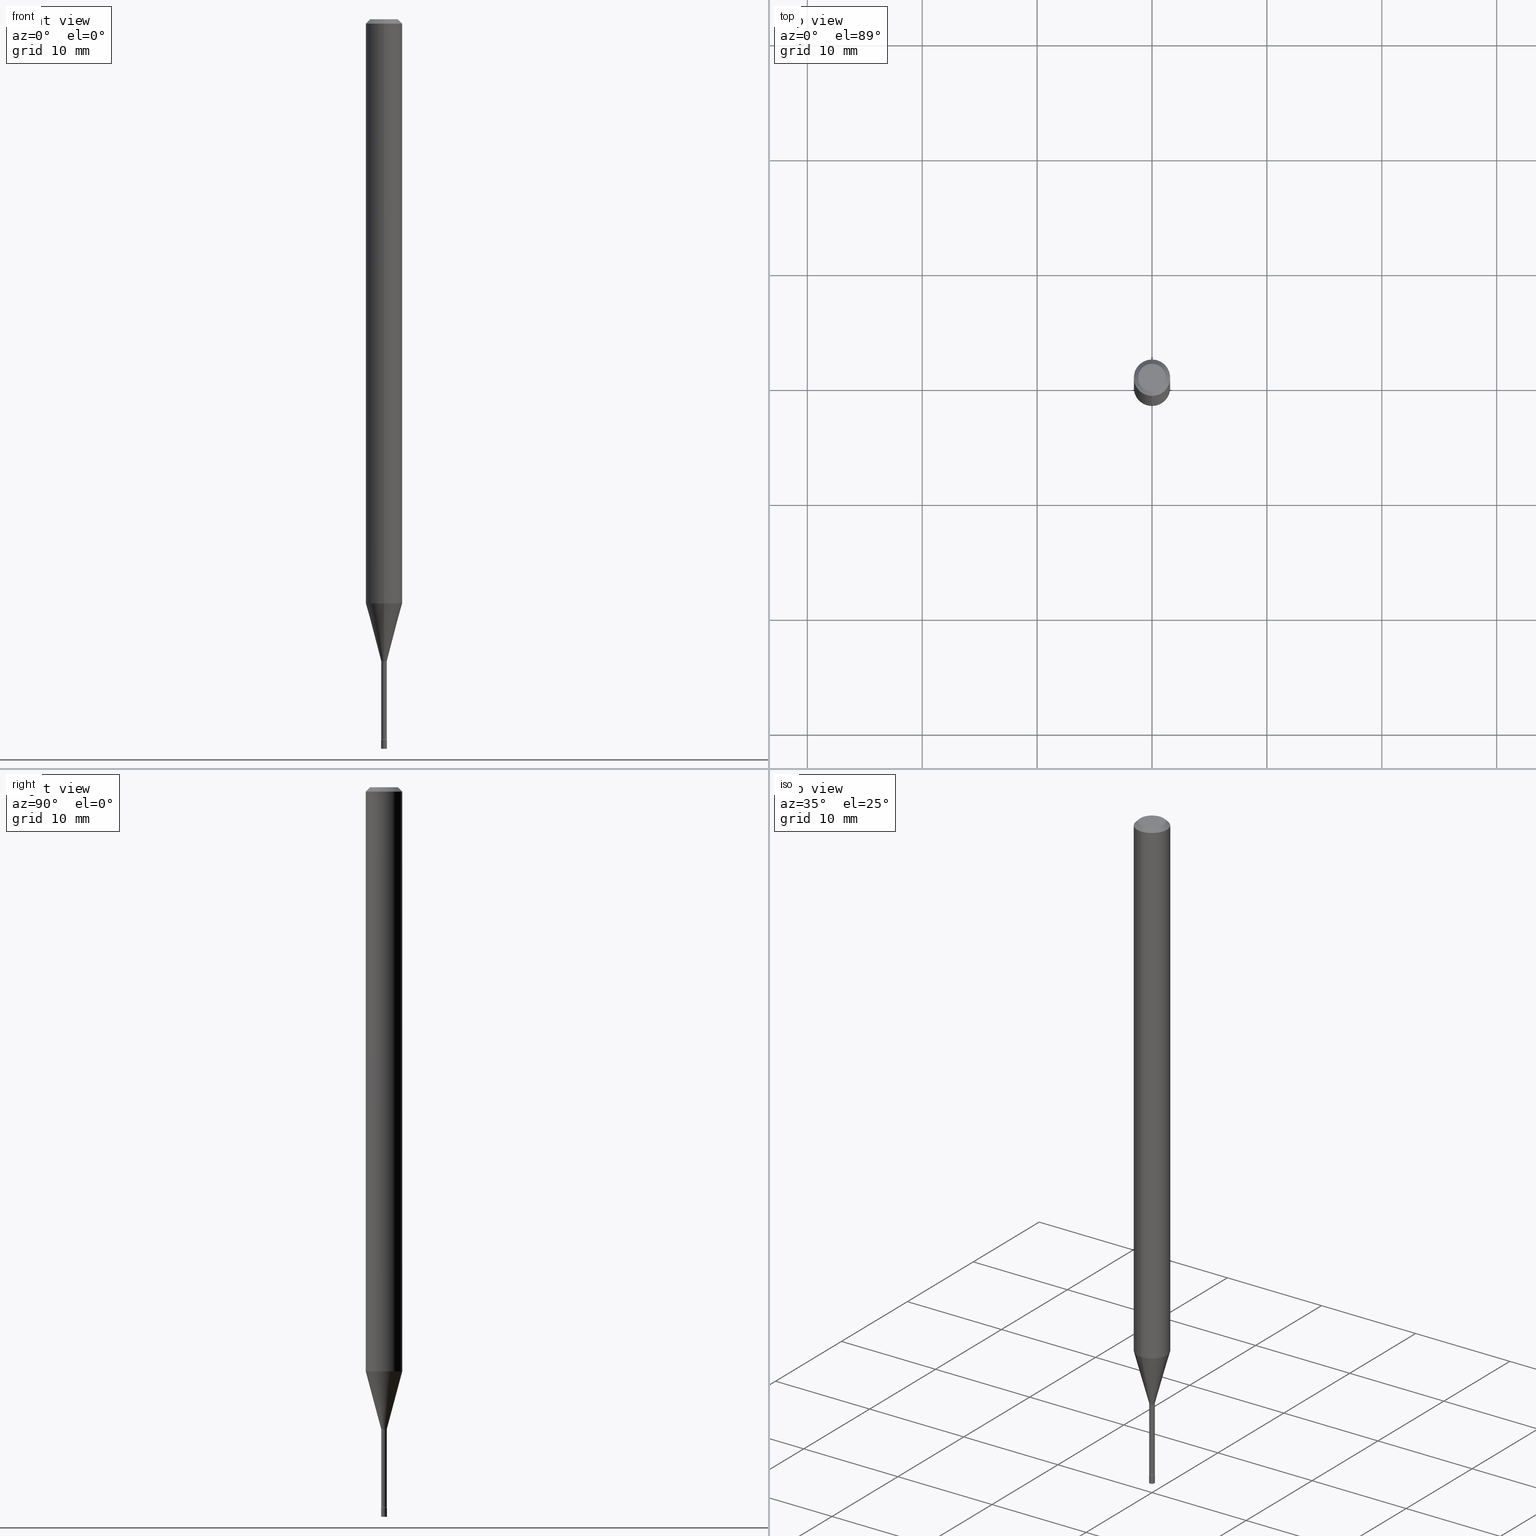
[diagram: canonical four-view strip — front | top / right | iso, engineering-drawing reading convention]
A machine part, canonical four-view strip (front | top / right | iso — engineering-drawing reading convention). The complete STEP part file that produces these views, byte-faithful:
ISO-10303-21;
HEADER;
FILE_DESCRIPTION (( 'STEP AP203' ),
    '1' );
FILE_NAME ('09610.STEP',
    '2024-03-08T23:56:40',
    ( '' ),
    ( '' ),
    'SwSTEP 2.0',
    'SolidWorks 2023',
    '' );
FILE_SCHEMA (( 'CONFIG_CONTROL_DESIGN' ));
ENDSEC;

DATA;
#1 = EDGE_CURVE ( 'NONE', #510, #108, #511, .T. ) ;
#2 = CARTESIAN_POINT ( 'NONE',  ( -6.563984917025098705E-17, -0.009400000000000012512, 3.281901276087720276E-17 ) ) ;
#3 = APPROVAL_STATUS ( 'not_yet_approved' ) ;
#4 = PERSON_AND_ORGANIZATION_ROLE ( 'creator' ) ;
#5 = CARTESIAN_POINT ( 'NONE',  ( 0.01000000000000000021, -8.693788533719433294E-15, -2.470000000000000195 ) ) ;
#6 = CIRCLE ( 'NONE', #159, 0.06250000000000000000 ) ;
#7 = AXIS2_PLACEMENT_3D ( 'NONE', #143, #428, #113 ) ;
#8 = APPROVAL_PERSON_ORGANIZATION ( #85, #103, #49 ) ;
#9 = DIRECTION ( 'NONE',  ( -2.445536542724447659E-29, 3.491384336263527933E-15, 1.000000000000000000 ) ) ;
#10 = FACE_OUTER_BOUND ( 'NONE', #498, .T. ) ;
#11 = APPROVAL ( #494, 'UNSPECIFIED' ) ;
#12 = FACE_OUTER_BOUND ( 'NONE', #188, .T. ) ;
#13 = DIRECTION ( 'NONE',  ( -2.445536542724447659E-29, 3.491384336263527933E-15, 1.000000000000000000 ) ) ;
#14 = DATE_AND_TIME ( #450, #477 ) ;
#15 = DIRECTION ( 'NONE',  ( -2.445536542724447659E-29, 3.491384336263527933E-15, 1.000000000000000000 ) ) ;
#16 = CIRCLE ( 'NONE', #74, 0.01000000000000000021 ) ;
#17 = DIRECTION ( 'NONE',  ( -6.982962677686265922E-15, -1.000000000000000000, 0.000000000000000000 ) ) ;
#18 = CARTESIAN_POINT ( 'NONE',  ( -1.703842893354910715E-16, -0.02440000000000768984, -2.201974787463810923 ) ) ;
#19 = FACE_OUTER_BOUND ( 'NONE', #427, .T. ) ;
#20 = CARTESIAN_POINT ( 'NONE',  ( -6.982962677680226008E-17, -0.01000000000000862178, -2.470000000000000195 ) ) ;
#21 = APPLICATION_CONTEXT ( 'configuration controlled 3d designs of mechanical parts and assemblies' ) ;
#22 = VERTEX_POINT ( 'NONE', #423 ) ;
#23 = CIRCLE ( 'NONE', #424, 0.01000000000000000021 ) ;
#24 = PERSON_AND_ORGANIZATION ( #46, #370 ) ;
#25 = CARTESIAN_POINT ( 'NONE',  ( 5.385009808900648701E-29, -7.687940281798359888E-15, -2.201974787463810923 ) ) ;
#26 = EDGE_CURVE ( 'NONE', #308, #506, #307, .T. ) ;
#27 = EDGE_LOOP ( 'NONE', ( #381, #350, #313, #464 ) ) ;
#28 = ORIENTED_EDGE ( 'NONE', *, *, #358, .F. ) ;
#29 = TOROIDAL_SURFACE ( 'NONE', #165, 0.02440000000000002583, 0.01500000000000000291 ) ;
#30 = AXIS2_PLACEMENT_3D ( 'NONE', #388, #426, #507 ) ;
#31 = AXIS2_PLACEMENT_3D ( 'NONE', #382, #516, #179 ) ;
#32 = EDGE_LOOP ( 'NONE', ( #384, #347 ) ) ;
#33 = CARTESIAN_POINT ( 'NONE',  ( -0.01000000000000000021, -8.605276853449206598E-15, -2.500000000000000000 ) ) ;
#34 = ORIENTED_EDGE ( 'NONE', *, *, #275, .T. ) ;
#35 = ORIENTED_EDGE ( 'NONE', *, *, #26, .T. ) ;
#36 = EDGE_CURVE ( 'NONE', #429, #134, #260, .T. ) ;
#37 = LINE ( 'NONE', #479, #60 ) ;
#38 = CIRCLE ( 'NONE', #259, 0.01500000000000002373 ) ;
#39 = CARTESIAN_POINT ( 'NONE',  ( 0.000000000000000000, 0.000000000000000000, 0.000000000000000000 ) ) ;
#40 = AXIS2_PLACEMENT_3D ( 'NONE', #391, #471, #146 ) ;
#41 = CARTESIAN_POINT ( 'NONE',  ( 4.440892098501114269E-16, 0.06249999999999299866, -2.001828102118093256 ) ) ;
#42 = DIRECTION ( 'NONE',  ( -2.445536542724447659E-29, 3.491384336263527933E-15, 1.000000000000000000 ) ) ;
#43 = CARTESIAN_POINT ( 'NONE',  ( 3.668304814086678845E-31, -5.237076504395302352E-17, -0.01500000000000003067 ) ) ;
#44 = ORIENTED_EDGE ( 'NONE', *, *, #319, .T. ) ;
#45 = DIRECTION ( 'NONE',  ( -2.445536542724447659E-29, 3.491384336263527933E-15, 1.000000000000000000 ) ) ;
#46 = PERSON ( 'UNSPECIFIED', 'UNSPECIFIED', 'UNSPECIFIED', ('UNSPECIFIED'), ('UNSPECIFIED'), ('UNSPECIFIED') ) ;
#47 = CARTESIAN_POINT ( 'NONE',  ( -4.287811248607203282E-16, -0.06250000000000005551, -0.01499999999999981209 ) ) ;
#48 = DATE_AND_TIME ( #444, #338 ) ;
#49 = APPROVAL_ROLE ( '' ) ;
#50 = CARTESIAN_POINT ( 'NONE',  ( 6.030036982291310238E-29, -8.609294685319429365E-15, -2.465800000000000214 ) ) ;
#51 = AXIS2_PLACEMENT_3D ( 'NONE', #371, #249, #93 ) ;
#52 = ADVANCED_FACE ( 'NONE', ( #264 ), #130, .T. ) ;
#53 = DATE_TIME_ROLE ( 'creation_date' ) ;
#54 = APPROVAL_DATE_TIME ( #48, #11 ) ;
#55 = EDGE_LOOP ( 'NONE', ( #225, #305, #231, #399 ) ) ;
#56 = CC_DESIGN_PERSON_AND_ORGANIZATION_ASSIGNMENT ( #325, #4, ( #195 ) ) ;
#57 = ORIENTED_EDGE ( 'NONE', *, *, #117, .F. ) ;
#58 = DIRECTION ( 'NONE',  ( -1.807323732225328562E-15, -0.2588190451025179639, 0.9659258262890690894 ) ) ;
#59 = DIRECTION ( 'NONE',  ( -6.982962677686265922E-15, -1.000000000000000000, 3.491384336263527933E-15 ) ) ;
#60 = VECTOR ( 'NONE', #317, 39.37007874015748143 ) ;
#61 = PERSON_AND_ORGANIZATION_ROLE ( 'classification_officer' ) ;
#62 = DIRECTION ( 'NONE',  ( 2.438088387897960049E-29, -3.491481338843145188E-15, -1.000000000000000000 ) ) ;
#63 = MANIFOLD_SOLID_BREP ( 'Body-Move/Copy2[2]', #309 ) ;
#64 = DIRECTION ( 'NONE',  ( 1.000000000000000000, -7.105427357601001070E-15, 4.926314320603096360E-29 ) ) ;
#65 = CARTESIAN_POINT ( 'NONE',  ( 6.040475260529386236E-29, -8.623719310570914180E-15, -2.470000000000000195 ) ) ;
#66 = CARTESIAN_POINT ( 'NONE',  ( 4.440892098500625669E-16, 0.06250000000000000000, -2.182115210164704958E-16 ) ) ;
#67 = VECTOR ( 'NONE', #323, 39.37007874015748143 ) ;
#68 = VERTEX_POINT ( 'NONE', #106 ) ;
#69 = DIRECTION ( 'NONE',  ( 7.105427357600999492E-15, 1.000000000000000000, 0.000000000000000000 ) ) ;
#70 = EDGE_LOOP ( 'NONE', ( #390, #181, #57, #476 ) ) ;
#71 = CC_DESIGN_PERSON_AND_ORGANIZATION_ASSIGNMENT ( #449, #89, ( #212 ) ) ;
#72 = EDGE_LOOP ( 'NONE', ( #34, #459 ) ) ;
#73 = CIRCLE ( 'NONE', #368, 0.009911112605663977004 ) ;
#74 = AXIS2_PLACEMENT_3D ( 'NONE', #279, #435, #81 ) ;
#75 = DIRECTION ( 'NONE',  ( -6.982962677686265922E-15, -1.000000000000000000, 3.491384336263527933E-15 ) ) ;
#76 = ORIENTED_EDGE ( 'NONE', *, *, #233, .F. ) ;
#77 = DIRECTION ( 'NONE',  ( 1.000000000000000000, -7.105427357601001070E-15, 4.926314320603096360E-29 ) ) ;
#78 = CARTESIAN_POINT ( 'NONE',  ( -0.01000000000000000021, -8.605276853449206598E-15, -2.470000000000000195 ) ) ;
#79 = EDGE_CURVE ( 'NONE', #185, #271, #38, .T. ) ;
#80 = DIRECTION ( 'NONE',  ( -6.982962677686266711E-15, -1.000000000000000000, 3.491384336263528328E-15 ) ) ;
#81 = DIRECTION ( 'NONE',  ( 1.000000000000000000, -6.982962677686235945E-15, 0.000000000000000000 ) ) ;
#82 = TOROIDAL_SURFACE ( 'NONE', #160, 0.02440000000000000155, 0.01500000000000002720 ) ;
#83 = APPROVAL_PERSON_ORGANIZATION ( #333, #11, #489 ) ;
#84 = CARTESIAN_POINT ( 'NONE',  ( 2.572559502513572182E-16, 0.009911112605656302588, -2.198092501787273001 ) ) ;
#85 = PERSON_AND_ORGANIZATION ( #46, #370 ) ;
#86 = DIRECTION ( 'NONE',  ( -2.445468806185136877E-29, 3.491481338843145188E-15, 1.000000000000000000 ) ) ;
#87 = FACE_OUTER_BOUND ( 'NONE', #211, .T. ) ;
#88 = COORDINATED_UNIVERSAL_TIME_OFFSET ( 5, 0, .BEHIND. ) ;
#89 = PERSON_AND_ORGANIZATION_ROLE ( 'design_owner' ) ;
#90 = EDGE_CURVE ( 'NONE', #108, #346, #392, .T. ) ;
#91 = DIRECTION ( 'NONE',  ( 1.000000000000000000, -6.982962677686265922E-15, 4.876176775795935793E-29 ) ) ;
#92 = LINE ( 'NONE', #47, #300 ) ;
#93 = DIRECTION ( 'NONE',  ( -6.982962677686265922E-15, -1.000000000000000000, 3.491384336263527933E-15 ) ) ;
#94 = CONICAL_SURFACE ( 'NONE', #310, 0.009911112605663977004, 0.2617993877991500740 ) ;
#95 = SHAPE_DEFINITION_REPRESENTATION ( #299, #440 ) ;
#96 = DIRECTION ( 'NONE',  ( -6.982962677686265922E-15, -1.000000000000000000, 3.491384336263527933E-15 ) ) ;
#97 = DIRECTION ( 'NONE',  ( 4.937700262164548042E-15, 0.7071067811865451302, -0.7071067811865499042 ) ) ;
#98 = CALENDAR_DATE ( 2024, 8, 3 ) ;
#99 = CIRCLE ( 'NONE', #240, 0.009399999999999998634 ) ;
#100 = FACE_OUTER_BOUND ( 'NONE', #32, .T. ) ;
#101 = CIRCLE ( 'NONE', #446, 0.009400000000000024655 ) ;
#102 = CARTESIAN_POINT ( 'NONE',  ( 0.01000000000000000021, -8.798532973884726663E-15, -2.500000000000000000 ) ) ;
#103 = APPROVAL ( #3, 'UNSPECIFIED' ) ;
#104 = ORIENTED_EDGE ( 'NONE', *, *, #474, .F. ) ;
#105 = DATE_AND_TIME ( #466, #114 ) ;
#106 = CARTESIAN_POINT ( 'NONE',  ( -4.364351673553912750E-16, -0.06250000000000005551, -0.01499999999999981209 ) ) ;
#107 = AXIS2_PLACEMENT_3D ( 'NONE', #25, #170, #508 ) ;
#108 = VERTEX_POINT ( 'NONE', #20 ) ;
#109 = ORIENTED_EDGE ( 'NONE', *, *, #221, .F. ) ;
#110 = COORDINATED_UNIVERSAL_TIME_OFFSET ( 5, 0, .BEHIND. ) ;
#111 = ORIENTED_EDGE ( 'NONE', *, *, #117, .T. ) ;
#112 = VECTOR ( 'NONE', #58, 39.37007874015748854 ) ;
#113 = DIRECTION ( 'NONE',  ( 1.000000000000000000, -6.982962677686265922E-15, 4.876176775795935793E-29 ) ) ;
#114 = LOCAL_TIME ( 18, 56, 40.00000000000000000, #263 ) ;
#115 = EDGE_LOOP ( 'NONE', ( #431, #145 ) ) ;
#116 = ORIENTED_EDGE ( 'NONE', *, *, #383, .T. ) ;
#117 = EDGE_CURVE ( 'NONE', #271, #315, #351, .T. ) ;
#118 = DIRECTION ( 'NONE',  ( -2.445468806185136597E-29, 3.491481338843145583E-15, 1.000000000000000000 ) ) ;
#119 = ADVANCED_FACE ( 'NONE', ( #456 ), #29, .F. ) ;
#120 = CARTESIAN_POINT ( 'NONE',  ( 6.040307951277287977E-29, -8.623958906942569995E-15, -2.470000000000000195 ) ) ;
#121 = LINE ( 'NONE', #451, #141 ) ;
#122 = CYLINDRICAL_SURFACE ( 'NONE', #142, 0.01000000000000000021 ) ;
#123 = ORIENTED_EDGE ( 'NONE', *, *, #79, .T. ) ;
#124 = CARTESIAN_POINT ( 'NONE',  ( 4.895543775982524061E-29, -6.989151279627256270E-15, -2.001828102118093256 ) ) ;
#125 = CIRCLE ( 'NONE', #404, 0.06250000000000000000 ) ;
#126 = PERSON_AND_ORGANIZATION_ROLE ( 'creator' ) ;
#127 = DIRECTION ( 'NONE',  ( -2.445536542724447659E-29, 3.491384336263527933E-15, 1.000000000000000000 ) ) ;
#128 = DIRECTION ( 'NONE',  ( -2.445536542724447659E-29, 3.491384336263527933E-15, 1.000000000000000000 ) ) ;
#129 = APPROVAL_STATUS ( 'not_yet_approved' ) ;
#130 = CYLINDRICAL_SURFACE ( 'NONE', #488, 0.06250000000000000000 ) ;
#131 = FACE_OUTER_BOUND ( 'NONE', #513, .T. ) ;
#132 = CARTESIAN_POINT ( 'NONE',  ( 0.000000000000000000, 0.000000000000000000, 0.000000000000000000 ) ) ;
#133 = ADVANCED_FACE ( 'NONE', ( #100 ), #467, .T. ) ;
#134 = VERTEX_POINT ( 'NONE', #102 ) ;
#135 = AXIS2_PLACEMENT_3D ( 'NONE', #219, #342, #501 ) ;
#136 = EDGE_CURVE ( 'NONE', #134, #517, #182, .T. ) ;
#137 = ORIENTED_EDGE ( 'NONE', *, *, #486, .F. ) ;
#138 = FACE_OUTER_BOUND ( 'NONE', #436, .T. ) ;
#139 = ORIENTED_EDGE ( 'NONE', *, *, #164, .T. ) ;
#140 = PLANE ( 'NONE',  #178 ) ;
#141 = VECTOR ( 'NONE', #406, 39.37007874015748143 ) ;
#142 = AXIS2_PLACEMENT_3D ( 'NONE', #252, #118, #239 ) ;
#143 = CARTESIAN_POINT ( 'NONE',  ( 0.000000000000000000, 0.000000000000000000, 0.000000000000000000 ) ) ;
#144 = ORIENTED_EDGE ( 'NONE', *, *, #136, .F. ) ;
#145 = ORIENTED_EDGE ( 'NONE', *, *, #499, .F. ) ;
#146 = DIRECTION ( 'NONE',  ( 1.000000000000000000, -6.982962677686235945E-15, 0.000000000000000000 ) ) ;
#147 = ORIENTED_EDGE ( 'NONE', *, *, #216, .T. ) ;
#148 = EDGE_CURVE ( 'NONE', #315, #271, #99, .T. ) ;
#149 = AXIS2_PLACEMENT_3D ( 'NONE', #50, #13, #206 ) ;
#150 =( LENGTH_UNIT ( ) NAMED_UNIT ( * ) SI_UNIT ( $, .METRE. ) );
#151 = ORIENTED_EDGE ( 'NONE', *, *, #515, .F. ) ;
#152 = DIRECTION ( 'NONE',  ( -2.445536542724447659E-29, 3.491384336263527933E-15, 1.000000000000000000 ) ) ;
#153 = CARTESIAN_POINT ( 'NONE',  ( 7.072129387646011672E-46, -1.009656626948158031E-31, -2.891851855040085948E-17 ) ) ;
#154 =( CONVERSION_BASED_UNIT ( 'INCH', #332 ) LENGTH_UNIT ( ) NAMED_UNIT ( #481 ) );
#155 = ADVANCED_FACE ( 'NONE', ( #10 ), #372, .T. ) ;
#156 = LINE ( 'NONE', #330, #326 ) ;
#157 = ORIENTED_EDGE ( 'NONE', *, *, #373, .T. ) ;
#158 =( NAMED_UNIT ( * ) PLANE_ANGLE_UNIT ( ) SI_UNIT ( $, .RADIAN. ) );
#159 = AXIS2_PLACEMENT_3D ( 'NONE', #124, #152, #321 ) ;
#160 = AXIS2_PLACEMENT_3D ( 'NONE', #234, #9, #75 ) ;
#161 = CARTESIAN_POINT ( 'NONE',  ( 4.440892098501118214E-16, 0.06249999999999995143, -0.01500000000000024751 ) ) ;
#162 = DIRECTION ( 'NONE',  ( -2.445536542724447659E-29, 3.491384336263527933E-15, 1.000000000000000000 ) ) ;
#163 = DIRECTION ( 'NONE',  ( -6.982962677686265922E-15, -1.000000000000000000, 0.000000000000000000 ) ) ;
#164 = EDGE_CURVE ( 'NONE', #429, #500, #121, .T. ) ;
#165 = AXIS2_PLACEMENT_3D ( 'NONE', #419, #258, #59 ) ;
#166 = APPROVAL_ROLE ( '' ) ;
#167 = CARTESIAN_POINT ( 'NONE',  ( -1.703842893354847853E-16, -0.02440000000000863700, -2.465800000000000214 ) ) ;
#168 = DIRECTION ( 'NONE',  ( -6.982962677686265922E-15, -1.000000000000000000, 3.483106191921935554E-15 ) ) ;
#169 = DATE_AND_TIME ( #98, #293 ) ;
#170 = DIRECTION ( 'NONE',  ( -2.445536542724447659E-29, 3.491384336263527933E-15, 1.000000000000000000 ) ) ;
#171 = EDGE_CURVE ( 'NONE', #308, #190, #6, .T. ) ;
#172 = DIRECTION ( 'NONE',  ( -6.982962677686265922E-15, -1.000000000000000000, 3.491384336263527539E-15 ) ) ;
#173 = DIRECTION ( 'NONE',  ( -2.445536542724447659E-29, 3.491384336263527933E-15, 1.000000000000000000 ) ) ;
#174 = EDGE_CURVE ( 'NONE', #22, #68, #92, .T. ) ;
#175 = FACE_OUTER_BOUND ( 'NONE', #70, .T. ) ;
#176 = VECTOR ( 'NONE', #173, 39.37007874015748143 ) ;
#177 = ORIENTED_EDGE ( 'NONE', *, *, #136, .T. ) ;
#178 = AXIS2_PLACEMENT_3D ( 'NONE', #469, #186, #91 ) ;
#179 = DIRECTION ( 'NONE',  ( -6.982962677686265922E-15, -1.000000000000000000, 0.000000000000000000 ) ) ;
#180 = EDGE_LOOP ( 'NONE', ( #244, #415 ) ) ;
#181 = ORIENTED_EDGE ( 'NONE', *, *, #515, .T. ) ;
#182 = LINE ( 'NONE', #243, #403 ) ;
#183 = EDGE_CURVE ( 'NONE', #185, #269, #73, .T. ) ;
#184 = DIRECTION ( 'NONE',  ( -6.982962677686265922E-15, -1.000000000000000000, 0.000000000000000000 ) ) ;
#185 = VERTEX_POINT ( 'NONE', #438 ) ;
#186 = DIRECTION ( 'NONE',  ( -2.438088387897960049E-29, 3.491481338843145188E-15, 1.000000000000000000 ) ) ;
#187 = CIRCLE ( 'NONE', #274, 0.06250000000000000000 ) ;
#188 = EDGE_LOOP ( 'NONE', ( #389, #139, #354, #144 ) ) ;
#189 = FACE_OUTER_BOUND ( 'NONE', #218, .T. ) ;
#190 = VERTEX_POINT ( 'NONE', #280 ) ;
#191 = ORIENTED_EDGE ( 'NONE', *, *, #257, .F. ) ;
#192 = AXIS2_PLACEMENT_3D ( 'NONE', #207, #162, #255 ) ;
#193 = DIRECTION ( 'NONE',  ( -2.445536542724447659E-29, 3.491384336263527933E-15, 1.000000000000000000 ) ) ;
#194 = CARTESIAN_POINT ( 'NONE',  ( 6.679101716150979261E-17, 0.009399999999992312075, -2.201974787463810923 ) ) ;
#195 = PRODUCT_DEFINITION ( 'UNKNOWN', '', #262, #430 ) ;
#196 = CARTESIAN_POINT ( 'NONE',  ( -6.563984917019076245E-17, -0.009400000000008634088, -2.465800000000000214 ) ) ;
#197 = DIRECTION ( 'NONE',  ( 2.445536542724447659E-29, -3.491384336263527933E-15, -1.000000000000000000 ) ) ;
#198 = VERTEX_POINT ( 'NONE', #256 ) ;
#199 = DIRECTION ( 'NONE',  ( -6.982962677686265922E-15, -1.000000000000000000, 0.000000000000000000 ) ) ;
#200 = DIRECTION ( 'NONE',  ( -2.445536542724447659E-29, 3.491384336263527933E-15, 1.000000000000000000 ) ) ;
#201 = LINE ( 'NONE', #360, #376 ) ;
#202 = AXIS2_PLACEMENT_3D ( 'NONE', #43, #197, #439 ) ;
#203 = CARTESIAN_POINT ( 'NONE',  ( 3.668304814086678845E-31, -5.237076504395302352E-17, -0.01500000000000003067 ) ) ;
#204 = CARTESIAN_POINT ( 'NONE',  ( 5.385009808900648701E-29, -7.687940281798359888E-15, -2.201974787463810923 ) ) ;
#205 = CC_DESIGN_APPROVAL ( #103, ( #195 ) ) ;
#206 = DIRECTION ( 'NONE',  ( -6.982962677686265922E-15, -1.000000000000000000, 3.491384336263527933E-15 ) ) ;
#207 = CARTESIAN_POINT ( 'NONE',  ( 5.375515537409379178E-29, -7.674385730398396481E-15, -2.198092501787273001 ) ) ;
#208 = CC_DESIGN_PERSON_AND_ORGANIZATION_ASSIGNMENT ( #336, #126, ( #262 ) ) ;
#209 = ORIENTED_EDGE ( 'NONE', *, *, #171, .T. ) ;
#210 = PERSON_AND_ORGANIZATION ( #46, #370 ) ;
#211 = EDGE_LOOP ( 'NONE', ( #226, #215, #147, #285 ) ) ;
#212 = PRODUCT ( '09610', '09610', '', ( #447 ) ) ;
#213 = CARTESIAN_POINT ( 'NONE',  ( 6.030204007049943435E-29, -8.609055496358607345E-15, -2.465800000000000214 ) ) ;
#214 = AXIS2_PLACEMENT_3D ( 'NONE', #417, #64, #291 ) ;
#215 = ORIENTED_EDGE ( 'NONE', *, *, #275, .F. ) ;
#216 = EDGE_CURVE ( 'NONE', #198, #506, #497, .T. ) ;
#217 = LINE ( 'NONE', #380, #112 ) ;
#218 = EDGE_LOOP ( 'NONE', ( #296, #278, #224, #109 ) ) ;
#219 = CARTESIAN_POINT ( 'NONE',  ( 0.000000000000000000, 0.000000000000000000, 0.000000000000000000 ) ) ;
#220 = CARTESIAN_POINT ( 'NONE',  ( 6.982962677692379396E-17, 0.009999999999991271080, -2.500000000000000000 ) ) ;
#221 = EDGE_CURVE ( 'NONE', #185, #190, #217, .T. ) ;
#222 = DIRECTION ( 'NONE',  ( 1.000000000000000000, -6.982962677686235945E-15, 0.000000000000000000 ) ) ;
#223 = CIRCLE ( 'NONE', #520, 0.01500000000000003240 ) ;
#224 = ORIENTED_EDGE ( 'NONE', *, *, #238, .F. ) ;
#225 = ORIENTED_EDGE ( 'NONE', *, *, #373, .F. ) ;
#226 = ORIENTED_EDGE ( 'NONE', *, *, #174, .F. ) ;
#227 = AXIS2_PLACEMENT_3D ( 'NONE', #167, #265, #422 ) ;
#228 = CIRCLE ( 'NONE', #490, 0.04749999999999999362 ) ;
#229 = ADVANCED_FACE ( 'NONE', ( #19 ), #340, .T. ) ;
#230 = CARTESIAN_POINT ( 'NONE',  ( 3.668304814086678845E-31, -5.237076504395302352E-17, -0.01500000000000003067 ) ) ;
#231 = ORIENTED_EDGE ( 'NONE', *, *, #148, .T. ) ;
#232 = DIRECTION ( 'NONE',  ( 1.000000000000000000, -6.982962677686235945E-15, 0.000000000000000000 ) ) ;
#233 = EDGE_CURVE ( 'NONE', #506, #68, #125, .T. ) ;
#234 = CARTESIAN_POINT ( 'NONE',  ( 5.384860654748895550E-29, -7.688153879032997927E-15, -2.201974787463810923 ) ) ;
#235 = EDGE_CURVE ( 'NONE', #236, #510, #412, .T. ) ;
#236 = VERTEX_POINT ( 'NONE', #301 ) ;
#237 = FACE_OUTER_BOUND ( 'NONE', #55, .T. ) ;
#238 = EDGE_CURVE ( 'NONE', #190, #308, #187, .T. ) ;
#239 = DIRECTION ( 'NONE',  ( 1.000000000000000000, -6.982962677686265922E-15, 4.876176775795935793E-29 ) ) ;
#240 = AXIS2_PLACEMENT_3D ( 'NONE', #204, #286, #361 ) ;
#241 = AXIS2_PLACEMENT_3D ( 'NONE', #485, #193, #276 ) ;
#242 = CC_DESIGN_APPROVAL ( #306, ( #395 ) ) ;
#243 = CARTESIAN_POINT ( 'NONE',  ( 0.01000000000000000021, -6.982962677686265724E-17, 4.876176775795935968E-31 ) ) ;
#244 = ORIENTED_EDGE ( 'NONE', *, *, #322, .T. ) ;
#245 = DIRECTION ( 'NONE',  ( -2.445536542724447659E-29, 3.491384336263527933E-15, 1.000000000000000000 ) ) ;
#246 = DIRECTION ( 'NONE',  ( -2.445536542724447659E-29, 3.491384336263527933E-15, 1.000000000000000000 ) ) ;
#247 = DIRECTION ( 'NONE',  ( -6.982962677686266711E-15, -1.000000000000000000, 3.491384336263528328E-15 ) ) ;
#248 = APPLICATION_PROTOCOL_DEFINITION ( 'international standard', 'config_control_design', 1994, #432 ) ;
#249 = DIRECTION ( 'NONE',  ( -2.445536542724447098E-29, 3.491384336263527933E-15, 1.000000000000000000 ) ) ;
#250 = EDGE_CURVE ( 'NONE', #269, #315, #223, .T. ) ;
#251 = CONICAL_SURFACE ( 'NONE', #31, 0.009911112605663977004, 0.2617993877991500740 ) ;
#252 = CARTESIAN_POINT ( 'NONE',  ( 0.000000000000000000, 0.000000000000000000, 0.000000000000000000 ) ) ;
#253 = COORDINATED_UNIVERSAL_TIME_OFFSET ( 5, 0, .BEHIND. ) ;
#254 = CARTESIAN_POINT ( 'NONE',  ( 3.668304814086678845E-31, -5.237076504395302352E-17, -0.01500000000000003067 ) ) ;
#255 = DIRECTION ( 'NONE',  ( -6.982962677686265922E-15, -1.000000000000000000, 0.000000000000000000 ) ) ;
#256 = CARTESIAN_POINT ( 'NONE',  ( 3.840629472727447874E-16, 0.04749999999999999362, -1.947592745229184365E-16 ) ) ;
#257 = EDGE_CURVE ( 'NONE', #269, #308, #156, .T. ) ;
#258 = DIRECTION ( 'NONE',  ( -2.445536542724447659E-29, 3.491384336263527933E-15, 1.000000000000000000 ) ) ;
#259 = AXIS2_PLACEMENT_3D ( 'NONE', #18, #261, #339 ) ;
#260 = CIRCLE ( 'NONE', #518, 0.01000000000000000021 ) ;
#261 = DIRECTION ( 'NONE',  ( -1.000000000000000000, 6.982962677686265922E-15, -4.883557194083112901E-29 ) ) ;
#262 = PRODUCT_DEFINITION_FORMATION_WITH_SPECIFIED_SOURCE ( 'ANY', '', #212, .NOT_KNOWN. ) ;
#263 = COORDINATED_UNIVERSAL_TIME_OFFSET ( 5, 0, .BEHIND. ) ;
#264 = FACE_OUTER_BOUND ( 'NONE', #312, .T. ) ;
#265 = DIRECTION ( 'NONE',  ( -1.000000000000000000, 6.982962677686265922E-15, -4.883557194083112901E-29 ) ) ;
#266 = ADVANCED_FACE ( 'NONE', ( #87 ), #394, .T. ) ;
#267 = AXIS2_PLACEMENT_3D ( 'NONE', #132, #418, #172 ) ;
#268 = DIRECTION ( 'NONE',  ( 6.982962677686265922E-15, 1.000000000000000000, -3.483106191921935554E-15 ) ) ;
#269 = VERTEX_POINT ( 'NONE', #84 ) ;
#270 = PLANE ( 'NONE',  #30 ) ;
#271 = VERTEX_POINT ( 'NONE', #364 ) ;
#272 = ADVANCED_FACE ( 'NONE', ( #288 ), #492, .F. ) ;
#273 = ORIENTED_EDGE ( 'NONE', *, *, #486, .T. ) ;
#274 = AXIS2_PLACEMENT_3D ( 'NONE', #460, #292, #454 ) ;
#275 = EDGE_CURVE ( 'NONE', #198, #22, #228, .T. ) ;
#276 = DIRECTION ( 'NONE',  ( -6.982962677686265922E-15, -1.000000000000000000, 3.491384336263527933E-15 ) ) ;
#277 = ADVANCED_FACE ( 'NONE', ( #335 ), #337, .F. ) ;
#278 = ORIENTED_EDGE ( 'NONE', *, *, #257, .T. ) ;
#279 = CARTESIAN_POINT ( 'NONE',  ( 6.040307951277287977E-29, -8.623958906942569995E-15, -2.470000000000000195 ) ) ;
#280 = CARTESIAN_POINT ( 'NONE',  ( -4.364351673553426614E-16, -0.06250000000000699441, -2.001828102118092811 ) ) ;
#281 = DIRECTION ( 'NONE',  ( -2.445468806185136597E-29, 3.491481338843145583E-15, 1.000000000000000000 ) ) ;
#282 = AXIS2_PLACEMENT_3D ( 'NONE', #65, #128, #387 ) ;
#283 = CIRCLE ( 'NONE', #433, 0.01000000000000000021 ) ;
#284 = DIRECTION ( 'NONE',  ( 1.839019923739598738E-15, 0.2588190451025247363, 0.9659258262890673130 ) ) ;
#285 = ORIENTED_EDGE ( 'NONE', *, *, #233, .T. ) ;
#286 = DIRECTION ( 'NONE',  ( -2.445536542724447659E-29, 3.491384336263527933E-15, 1.000000000000000000 ) ) ;
#287 = CARTESIAN_POINT ( 'NONE',  ( 7.105427357607040490E-17, 0.009999999999991376898, -2.470000000000000195 ) ) ;
#288 = FACE_OUTER_BOUND ( 'NONE', #115, .T. ) ;
#289 = ORIENTED_EDGE ( 'NONE', *, *, #26, .F. ) ;
#290 = AXIS2_PLACEMENT_3D ( 'NONE', #220, #62, #462 ) ;
#291 = DIRECTION ( 'NONE',  ( 7.105427357600997914E-15, 1.000000000000000000, 0.000000000000000000 ) ) ;
#292 = DIRECTION ( 'NONE',  ( -2.445536542724447659E-29, 3.491384336263527933E-15, 1.000000000000000000 ) ) ;
#293 = LOCAL_TIME ( 18, 56, 40.00000000000000000, #297 ) ;
#294 = ADVANCED_FACE ( 'NONE', ( #12 ), #122, .T. ) ;
#295 = CARTESIAN_POINT ( 'NONE',  ( 4.364351673553919652E-16, 0.06249999999999995143, -0.01500000000000024751 ) ) ;
#296 = ORIENTED_EDGE ( 'NONE', *, *, #183, .T. ) ;
#297 = COORDINATED_UNIVERSAL_TIME_OFFSET ( 5, 0, .BEHIND. ) ;
#298 = CARTESIAN_POINT ( 'NONE',  ( 6.113672015462842613E-29, -8.728703347107864943E-15, -2.500000000000000000 ) ) ;
#299 = PRODUCT_DEFINITION_SHAPE ( 'NONE', 'NONE',  #195 ) ;
#300 = VECTOR ( 'NONE', #483, 39.37007874015748143 ) ;
#301 = CARTESIAN_POINT ( 'NONE',  ( 6.892264536879016655E-17, 0.009399999999991416957, -2.465800000000000214 ) ) ;
#302 = AXIS2_PLACEMENT_3D ( 'NONE', #203, #127, #168 ) ;
#303 = DIRECTION ( 'NONE',  ( -2.445468806185136597E-29, 3.491481338843145583E-15, 1.000000000000000000 ) ) ;
#304 = EDGE_CURVE ( 'NONE', #22, #198, #504, .T. ) ;
#305 = ORIENTED_EDGE ( 'NONE', *, *, #250, .T. ) ;
#306 = APPROVAL ( #129, 'UNSPECIFIED' ) ;
#307 = LINE ( 'NONE', #66, #176 ) ;
#308 = VERTEX_POINT ( 'NONE', #41 ) ;
#309 = CLOSED_SHELL ( 'NONE', ( #478, #385, #119, #416, #155, #437, #400, #52, #266, #425, #272, #277, #229, #470 ) ) ;
#310 = AXIS2_PLACEMENT_3D ( 'NONE', #355, #509, #184 ) ;
#311 =( GEOMETRIC_REPRESENTATION_CONTEXT ( 3 ) GLOBAL_UNCERTAINTY_ASSIGNED_CONTEXT ( ( #367 ) ) GLOBAL_UNIT_ASSIGNED_CONTEXT ( ( #154, #158, #411 ) ) REPRESENTATION_CONTEXT ( 'NONE', 'WORKASPACE' ) );
#312 = EDGE_LOOP ( 'NONE', ( #289, #209, #273, #76 ) ) ;
#313 = ORIENTED_EDGE ( 'NONE', *, *, #358, .T. ) ;
#314 = FACE_OUTER_BOUND ( 'NONE', #72, .T. ) ;
#315 = VERTEX_POINT ( 'NONE', #194 ) ;
#316 = CONICAL_SURFACE ( 'NONE', #352, 0.06250000000000000000, 0.7853981633974483900 ) ;
#317 = DIRECTION ( 'NONE',  ( -2.445536542724447659E-29, 3.491384336263527933E-15, 1.000000000000000000 ) ) ;
#318 = ORIENTED_EDGE ( 'NONE', *, *, #221, .T. ) ;
#319 = EDGE_CURVE ( 'NONE', #510, #271, #362, .T. ) ;
#320 = CARTESIAN_POINT ( 'NONE',  ( 0.000000000000000000, 0.000000000000000000, 0.000000000000000000 ) ) ;
#321 = DIRECTION ( 'NONE',  ( -6.982962677686265922E-15, -1.000000000000000000, 4.370956789862821150E-15 ) ) ;
#322 = EDGE_CURVE ( 'NONE', #517, #500, #23, .T. ) ;
#323 = DIRECTION ( 'NONE',  ( -2.445536542724447659E-29, 3.491384336263527933E-15, 1.000000000000000000 ) ) ;
#324 = CARTESIAN_POINT ( 'NONE',  ( 6.030204007049943435E-29, -8.609055496358607345E-15, -2.465800000000000214 ) ) ;
#325 = PERSON_AND_ORGANIZATION ( #46, #370 ) ;
#326 = VECTOR ( 'NONE', #284, 39.37007874015748854 ) ;
#327 = VECTOR ( 'NONE', #97, 39.37007874015748143 ) ;
#328 = DIRECTION ( 'NONE',  ( -6.982962677686265922E-15, -1.000000000000000000, 0.000000000000000000 ) ) ;
#329 = ADVANCED_FACE ( 'NONE', ( #401 ), #140, .T. ) ;
#330 = CARTESIAN_POINT ( 'NONE',  ( 7.042269065260271360E-17, 0.009911112605656302588, -2.198092501787273001 ) ) ;
#331 = DATE_AND_TIME ( #363, #491 ) ;
#332 = LENGTH_MEASURE_WITH_UNIT ( LENGTH_MEASURE( 0.02539999999999999897 ), #150 );
#333 = PERSON_AND_ORGANIZATION ( #46, #370 ) ;
#334 = CYLINDRICAL_SURFACE ( 'NONE', #135, 0.009400000000000012512 ) ;
#335 = FACE_OUTER_BOUND ( 'NONE', #379, .T. ) ;
#336 = PERSON_AND_ORGANIZATION ( #46, #370 ) ;
#337 = TOROIDAL_SURFACE ( 'NONE', #149, 0.02440000000000002583, 0.01500000000000000291 ) ;
#338 = LOCAL_TIME ( 18, 56, 40.00000000000000000, #253 ) ;
#339 = DIRECTION ( 'NONE',  ( -6.982962677686269077E-15, -1.000000000000000000, 0.000000000000000000 ) ) ;
#340 = CYLINDRICAL_SURFACE ( 'NONE', #267, 0.009400000000000012512 ) ;
#341 = ORIENTED_EDGE ( 'NONE', *, *, #383, .F. ) ;
#342 = DIRECTION ( 'NONE',  ( -2.445536542724447659E-29, 3.491384336263527933E-15, 1.000000000000000000 ) ) ;
#343 = DIRECTION ( 'NONE',  ( -2.445536542724447659E-29, 3.491384336263527933E-15, 1.000000000000000000 ) ) ;
#344 = ORIENTED_EDGE ( 'NONE', *, *, #148, .F. ) ;
#345 = CIRCLE ( 'NONE', #214, 0.01500000000000000638 ) ;
#346 = VERTEX_POINT ( 'NONE', #287 ) ;
#347 = ORIENTED_EDGE ( 'NONE', *, *, #36, .F. ) ;
#348 = FACE_OUTER_BOUND ( 'NONE', #27, .T. ) ;
#349 = ORIENTED_EDGE ( 'NONE', *, *, #238, .T. ) ;
#350 = ORIENTED_EDGE ( 'NONE', *, *, #174, .T. ) ;
#351 = CIRCLE ( 'NONE', #107, 0.009399999999999998634 ) ;
#352 = AXIS2_PLACEMENT_3D ( 'NONE', #230, #397, #268 ) ;
#353 = AXIS2_PLACEMENT_3D ( 'NONE', #320, #482, #405 ) ;
#354 = ORIENTED_EDGE ( 'NONE', *, *, #322, .F. ) ;
#355 = CARTESIAN_POINT ( 'NONE',  ( 5.375515537409379178E-29, -7.674385730398396481E-15, -2.198092501787273001 ) ) ;
#356 = ORIENTED_EDGE ( 'NONE', *, *, #499, .T. ) ;
#357 = ORIENTED_EDGE ( 'NONE', *, *, #164, .F. ) ;
#358 = EDGE_CURVE ( 'NONE', #68, #506, #420, .T. ) ;
#359 = CIRCLE ( 'NONE', #192, 0.009911112605663977004 ) ;
#360 = CARTESIAN_POINT ( 'NONE',  ( -4.364351673553916201E-16, -0.06250000000000000000, 2.182115210164704958E-16 ) ) ;
#361 = DIRECTION ( 'NONE',  ( -6.982962677686265922E-15, -1.000000000000000000, 0.000000000000000000 ) ) ;
#362 = LINE ( 'NONE', #2, #67 ) ;
#363 = CALENDAR_DATE ( 2024, 8, 3 ) ;
#364 = CARTESIAN_POINT ( 'NONE',  ( -6.563984917019704869E-17, -0.009400000000007686929, -2.201974787463810923 ) ) ;
#365 = ORIENTED_EDGE ( 'NONE', *, *, #1, .T. ) ;
#366 = CARTESIAN_POINT ( 'NONE',  ( 6.040475260529386236E-29, -8.623719310570914180E-15, -2.470000000000000195 ) ) ;
#367 = UNCERTAINTY_MEASURE_WITH_UNIT (LENGTH_MEASURE( 1.000000000000000082E-05 ), #154, 'distance_accuracy_value', 'NONE');
#368 = AXIS2_PLACEMENT_3D ( 'NONE', #495, #200, #163 ) ;
#369 = AXIS2_PLACEMENT_3D ( 'NONE', #153, #402, #247 ) ;
#370 = ORGANIZATION ( 'UNSPECIFIED', 'UNSPECIFIED', '' ) ;
#371 = CARTESIAN_POINT ( 'NONE',  ( 6.982962677692306673E-17, 0.009999999999991375163, -2.470000000000000195 ) ) ;
#372 = CYLINDRICAL_SURFACE ( 'NONE', #443, 0.06250000000000000000 ) ;
#373 = EDGE_CURVE ( 'NONE', #269, #185, #359, .T. ) ;
#374 = DATE_TIME_ROLE ( 'classification_date' ) ;
#375 = CARTESIAN_POINT ( 'NONE',  ( 0.000000000000000000, 0.000000000000000000, 0.000000000000000000 ) ) ;
#376 = VECTOR ( 'NONE', #45, 39.37007874015748143 ) ;
#377 = DIRECTION ( 'NONE',  ( -2.445536542724447659E-29, 3.491384336263527933E-15, 1.000000000000000000 ) ) ;
#378 = CC_DESIGN_APPROVAL ( #11, ( #262 ) ) ;
#379 = EDGE_LOOP ( 'NONE', ( #341, #445, #365, #480 ) ) ;
#380 = CARTESIAN_POINT ( 'NONE',  ( -6.920892941964366252E-17, -0.009911112605671651421, -2.198092501787273001 ) ) ;
#381 = ORIENTED_EDGE ( 'NONE', *, *, #304, .F. ) ;
#382 = CARTESIAN_POINT ( 'NONE',  ( 5.375515537409379178E-29, -7.674385730398396481E-15, -2.198092501787273001 ) ) ;
#383 = EDGE_CURVE ( 'NONE', #236, #346, #345, .T. ) ;
#384 = ORIENTED_EDGE ( 'NONE', *, *, #413, .F. ) ;
#385 = ADVANCED_FACE ( 'NONE', ( #175 ), #334, .T. ) ;
#386 = PERSON_AND_ORGANIZATION_ROLE ( 'design_supplier' ) ;
#387 = DIRECTION ( 'NONE',  ( -6.982962677686265922E-15, -1.000000000000000000, 0.000000000000000000 ) ) ;
#388 = CARTESIAN_POINT ( 'NONE',  ( 3.316907271900976096E-16, 0.04749999999999999362, -1.803000152477179914E-16 ) ) ;
#389 = ORIENTED_EDGE ( 'NONE', *, *, #413, .T. ) ;
#390 = ORIENTED_EDGE ( 'NONE', *, *, #465, .T. ) ;
#391 = CARTESIAN_POINT ( 'NONE',  ( 6.113672015462842613E-29, -8.728703347107864943E-15, -2.500000000000000000 ) ) ;
#392 = CIRCLE ( 'NONE', #282, 0.01000000000000000021 ) ;
#393 = ORIENTED_EDGE ( 'NONE', *, *, #250, .F. ) ;
#394 = CONICAL_SURFACE ( 'NONE', #202, 0.06250000000000000000, 0.7853981633974483900 ) ;
#395 = SECURITY_CLASSIFICATION ( '', '', #461 ) ;
#396 = APPROVAL_PERSON_ORGANIZATION ( #457, #306, #166 ) ;
#397 = DIRECTION ( 'NONE',  ( 2.445536542724447659E-29, -3.491384336263527933E-15, -1.000000000000000000 ) ) ;
#398 = ORIENTED_EDGE ( 'NONE', *, *, #235, .F. ) ;
#399 = ORIENTED_EDGE ( 'NONE', *, *, #79, .F. ) ;
#400 = ADVANCED_FACE ( 'NONE', ( #131 ), #251, .T. ) ;
#401 = FACE_OUTER_BOUND ( 'NONE', #180, .T. ) ;
#402 = DIRECTION ( 'NONE',  ( -2.445536542724447659E-29, 3.491384336263527933E-15, 1.000000000000000000 ) ) ;
#403 = VECTOR ( 'NONE', #86, 39.37007874015748143 ) ;
#404 = AXIS2_PLACEMENT_3D ( 'NONE', #254, #343, #502 ) ;
#405 = DIRECTION ( 'NONE',  ( 1.000000000000000000, 0.000000000000000000, 0.000000000000000000 ) ) ;
#406 = DIRECTION ( 'NONE',  ( -2.445468806185136877E-29, 3.491481338843145188E-15, 1.000000000000000000 ) ) ;
#407 = CC_DESIGN_PERSON_AND_ORGANIZATION_ASSIGNMENT ( #24, #61, ( #395 ) ) ;
#408 = APPLICATION_PROTOCOL_DEFINITION ( 'international standard', 'config_control_design', 1994, #21 ) ;
#409 = DIRECTION ( 'NONE',  ( -6.982962677686265922E-15, -1.000000000000000000, 3.491384336263527933E-15 ) ) ;
#410 = MANIFOLD_SOLID_BREP ( 'Body-Move/Copy2[1]', #487 ) ;
#411 =( NAMED_UNIT ( * ) SI_UNIT ( $, .STERADIAN. ) SOLID_ANGLE_UNIT ( ) );
#412 = CIRCLE ( 'NONE', #452, 0.009400000000000024655 ) ;
#413 = EDGE_CURVE ( 'NONE', #134, #429, #496, .T. ) ;
#414 = CARTESIAN_POINT ( 'NONE',  ( 1.733724275255182715E-16, 0.02439999999999231325, -2.201974787463810923 ) ) ;
#415 = ORIENTED_EDGE ( 'NONE', *, *, #474, .T. ) ;
#416 = ADVANCED_FACE ( 'NONE', ( #348 ), #316, .T. ) ;
#417 = CARTESIAN_POINT ( 'NONE',  ( 1.733724275255249028E-16, 0.02439999999999141814, -2.465800000000000214 ) ) ;
#418 = DIRECTION ( 'NONE',  ( -2.445536542724447659E-29, 3.491384336263527933E-15, 1.000000000000000000 ) ) ;
#419 = CARTESIAN_POINT ( 'NONE',  ( 6.030036982291310238E-29, -8.609294685319429365E-15, -2.465800000000000214 ) ) ;
#420 = CIRCLE ( 'NONE', #302, 0.06250000000000000000 ) ;
#421 = ORIENTED_EDGE ( 'NONE', *, *, #1, .F. ) ;
#422 = DIRECTION ( 'NONE',  ( -6.982962677686266711E-15, -1.000000000000000000, 0.000000000000000000 ) ) ;
#423 = CARTESIAN_POINT ( 'NONE',  ( -3.773273898774340269E-16, -0.04749999999999999362, 1.369222374221167053E-16 ) ) ;
#424 = AXIS2_PLACEMENT_3D ( 'NONE', #120, #281, #232 ) ;
#425 = ADVANCED_FACE ( 'NONE', ( #314 ), #270, .F. ) ;
#426 = DIRECTION ( 'NONE',  ( 2.445536542724447098E-29, -3.491384336263527933E-15, -1.000000000000000000 ) ) ;
#427 = EDGE_LOOP ( 'NONE', ( #151, #514, #44, #344 ) ) ;
#428 = DIRECTION ( 'NONE',  ( -2.445468806185136597E-29, 3.491481338843145583E-15, 1.000000000000000000 ) ) ;
#429 = VERTEX_POINT ( 'NONE', #33 ) ;
#430 = DESIGN_CONTEXT ( 'detailed design', #432, 'design' ) ;
#431 = ORIENTED_EDGE ( 'NONE', *, *, #90, .F. ) ;
#432 = APPLICATION_CONTEXT ( 'configuration controlled 3d designs of mechanical parts and assemblies' ) ;
#433 = AXIS2_PLACEMENT_3D ( 'NONE', #366, #42, #328 ) ;
#434 = CC_DESIGN_DATE_AND_TIME_ASSIGNMENT ( #105, #374, ( #395 ) ) ;
#435 = DIRECTION ( 'NONE',  ( -2.445468806185136597E-29, 3.491481338843145583E-15, 1.000000000000000000 ) ) ;
#436 = EDGE_LOOP ( 'NONE', ( #357, #519, #177, #104 ) ) ;
#437 = ADVANCED_FACE ( 'NONE', ( #189 ), #94, .T. ) ;
#438 = CARTESIAN_POINT ( 'NONE',  ( -6.920892941964366252E-17, -0.009911112605671651421, -2.198092501787273001 ) ) ;
#439 = DIRECTION ( 'NONE',  ( 6.982962677686265922E-15, 1.000000000000000000, -3.483106191921935554E-15 ) ) ;
#440 = ADVANCED_BREP_SHAPE_REPRESENTATION ( '09610', ( #410, #63, #353 ), #311 ) ;
#441 = CC_DESIGN_DATE_AND_TIME_ASSIGNMENT ( #331, #53, ( #195 ) ) ;
#442 = CARTESIAN_POINT ( 'NONE',  ( 7.072129387646011672E-46, -1.009656626948158031E-31, -2.891851855040085948E-17 ) ) ;
#443 = AXIS2_PLACEMENT_3D ( 'NONE', #39, #246, #409 ) ;
#444 = CALENDAR_DATE ( 2024, 8, 3 ) ;
#445 = ORIENTED_EDGE ( 'NONE', *, *, #465, .F. ) ;
#446 = AXIS2_PLACEMENT_3D ( 'NONE', #324, #245, #199 ) ;
#447 = MECHANICAL_CONTEXT ( 'NONE', #21, 'mechanical' ) ;
#448 = DIRECTION ( 'NONE',  ( -2.445536542724447659E-29, 3.491384336263527933E-15, 1.000000000000000000 ) ) ;
#449 = PERSON_AND_ORGANIZATION ( #46, #370 ) ;
#450 = CALENDAR_DATE ( 2024, 8, 3 ) ;
#451 = CARTESIAN_POINT ( 'NONE',  ( -0.01000000000000000021, 7.105427357601002007E-17, -4.918935090254906272E-31 ) ) ;
#452 = AXIS2_PLACEMENT_3D ( 'NONE', #213, #377, #17 ) ;
#453 = PRODUCT_RELATED_PRODUCT_CATEGORY ( 'detail', '', ( #212 ) ) ;
#454 = DIRECTION ( 'NONE',  ( -6.982962677686265922E-15, -1.000000000000000000, 4.370956789862821150E-15 ) ) ;
#455 = APPROVAL_DATE_TIME ( #169, #306 ) ;
#456 = FACE_OUTER_BOUND ( 'NONE', #473, .T. ) ;
#457 = PERSON_AND_ORGANIZATION ( #46, #370 ) ;
#458 = CC_DESIGN_PERSON_AND_ORGANIZATION_ASSIGNMENT ( #210, #386, ( #262 ) ) ;
#459 = ORIENTED_EDGE ( 'NONE', *, *, #304, .T. ) ;
#460 = CARTESIAN_POINT ( 'NONE',  ( 4.895543775982524061E-29, -6.989151279627256270E-15, -2.001828102118093256 ) ) ;
#461 = SECURITY_CLASSIFICATION_LEVEL ( 'unclassified' ) ;
#462 = DIRECTION ( 'NONE',  ( -1.000000000000000000, 6.982962677686265922E-15, -4.876176775795935793E-29 ) ) ;
#463 = ADVANCED_FACE ( 'NONE', ( #138 ), #475, .T. ) ;
#464 = ORIENTED_EDGE ( 'NONE', *, *, #216, .F. ) ;
#465 = EDGE_CURVE ( 'NONE', #510, #236, #101, .T. ) ;
#466 = CALENDAR_DATE ( 2024, 8, 3 ) ;
#467 = PLANE ( 'NONE',  #290 ) ;
#468 = ORIENTED_EDGE ( 'NONE', *, *, #183, .F. ) ;
#469 = CARTESIAN_POINT ( 'NONE',  ( 6.040307951277287977E-29, -8.623958906942569995E-15, -2.470000000000000195 ) ) ;
#470 = ADVANCED_FACE ( 'NONE', ( #493 ), #512, .F. ) ;
#471 = DIRECTION ( 'NONE',  ( -2.445468806185136597E-29, 3.491481338843145583E-15, 1.000000000000000000 ) ) ;
#472 = EDGE_LOOP ( 'NONE', ( #393, #468, #123, #111 ) ) ;
#473 = EDGE_LOOP ( 'NONE', ( #398, #116, #356, #421 ) ) ;
#474 = EDGE_CURVE ( 'NONE', #500, #517, #16, .T. ) ;
#475 = CYLINDRICAL_SURFACE ( 'NONE', #7, 0.01000000000000000021 ) ;
#476 = ORIENTED_EDGE ( 'NONE', *, *, #319, .F. ) ;
#477 = LOCAL_TIME ( 18, 56, 40.00000000000000000, #110 ) ;
#478 = ADVANCED_FACE ( 'NONE', ( #237 ), #82, .F. ) ;
#479 = CARTESIAN_POINT ( 'NONE',  ( 6.679101716144949405E-17, 0.009400000000000012512, -3.281901276087720276E-17 ) ) ;
#480 = ORIENTED_EDGE ( 'NONE', *, *, #90, .T. ) ;
#481 = DIMENSIONAL_EXPONENTS ( 1.000000000000000000, 0.000000000000000000, 0.000000000000000000, 0.000000000000000000, 0.000000000000000000, 0.000000000000000000, 0.000000000000000000 ) ;
#482 = DIRECTION ( 'NONE',  ( 0.000000000000000000, 0.000000000000000000, 1.000000000000000000 ) ) ;
#483 = DIRECTION ( 'NONE',  ( -4.851104656540964275E-15, -0.7071067811865500152, -0.7071067811865450192 ) ) ;
#484 = APPROVAL_DATE_TIME ( #14, #103 ) ;
#485 = CARTESIAN_POINT ( 'NONE',  ( 5.384860654748895550E-29, -7.688153879032997927E-15, -2.201974787463810923 ) ) ;
#486 = EDGE_CURVE ( 'NONE', #190, #68, #201, .T. ) ;
#487 = CLOSED_SHELL ( 'NONE', ( #294, #329, #463, #133 ) ) ;
#488 = AXIS2_PLACEMENT_3D ( 'NONE', #375, #15, #96 ) ;
#489 = APPROVAL_ROLE ( '' ) ;
#490 = AXIS2_PLACEMENT_3D ( 'NONE', #442, #448, #80 ) ;
#491 = LOCAL_TIME ( 18, 56, 40.00000000000000000, #88 ) ;
#492 = PLANE ( 'NONE',  #51 ) ;
#493 = FACE_OUTER_BOUND ( 'NONE', #472, .T. ) ;
#494 = APPROVAL_STATUS ( 'not_yet_approved' ) ;
#495 = CARTESIAN_POINT ( 'NONE',  ( 5.375515537409379178E-29, -7.674385730398396481E-15, -2.198092501787273001 ) ) ;
#496 = CIRCLE ( 'NONE', #40, 0.01000000000000000021 ) ;
#497 = LINE ( 'NONE', #295, #327 ) ;
#498 = EDGE_LOOP ( 'NONE', ( #349, #35, #28, #137 ) ) ;
#499 = EDGE_CURVE ( 'NONE', #346, #108, #283, .T. ) ;
#500 = VERTEX_POINT ( 'NONE', #78 ) ;
#501 = DIRECTION ( 'NONE',  ( -6.982962677686265922E-15, -1.000000000000000000, 3.491384336263527539E-15 ) ) ;
#502 = DIRECTION ( 'NONE',  ( -6.982962677686265922E-15, -1.000000000000000000, 3.483106191921935554E-15 ) ) ;
#503 = ORIENTED_EDGE ( 'NONE', *, *, #171, .F. ) ;
#504 = CIRCLE ( 'NONE', #369, 0.04749999999999999362 ) ;
#505 = CC_DESIGN_SECURITY_CLASSIFICATION ( #395, ( #262 ) ) ;
#506 = VERTEX_POINT ( 'NONE', #161 ) ;
#507 = DIRECTION ( 'NONE',  ( 6.982962677686265922E-15, 1.000000000000000000, -3.491384336263527933E-15 ) ) ;
#508 = DIRECTION ( 'NONE',  ( -6.982962677686265922E-15, -1.000000000000000000, 0.000000000000000000 ) ) ;
#509 = DIRECTION ( 'NONE',  ( -2.445536542724447659E-29, 3.491384336263527933E-15, 1.000000000000000000 ) ) ;
#510 = VERTEX_POINT ( 'NONE', #196 ) ;
#511 = CIRCLE ( 'NONE', #227, 0.01499999999999999771 ) ;
#512 = TOROIDAL_SURFACE ( 'NONE', #241, 0.02440000000000000155, 0.01500000000000002720 ) ;
#513 = EDGE_LOOP ( 'NONE', ( #191, #157, #318, #503 ) ) ;
#514 = ORIENTED_EDGE ( 'NONE', *, *, #235, .T. ) ;
#515 = EDGE_CURVE ( 'NONE', #236, #315, #37, .T. ) ;
#516 = DIRECTION ( 'NONE',  ( -2.445536542724447659E-29, 3.491384336263527933E-15, 1.000000000000000000 ) ) ;
#517 = VERTEX_POINT ( 'NONE', #5 ) ;
#518 = AXIS2_PLACEMENT_3D ( 'NONE', #298, #303, #222 ) ;
#519 = ORIENTED_EDGE ( 'NONE', *, *, #36, .T. ) ;
#520 = AXIS2_PLACEMENT_3D ( 'NONE', #414, #77, #69 ) ;
ENDSEC;
END-ISO-10303-21;
